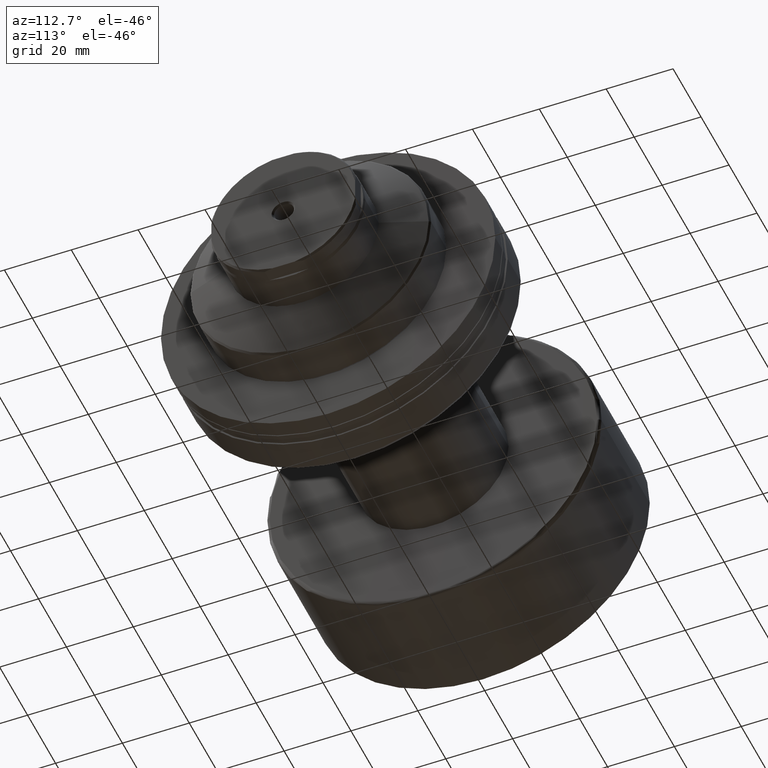
[diagram: clean part render]
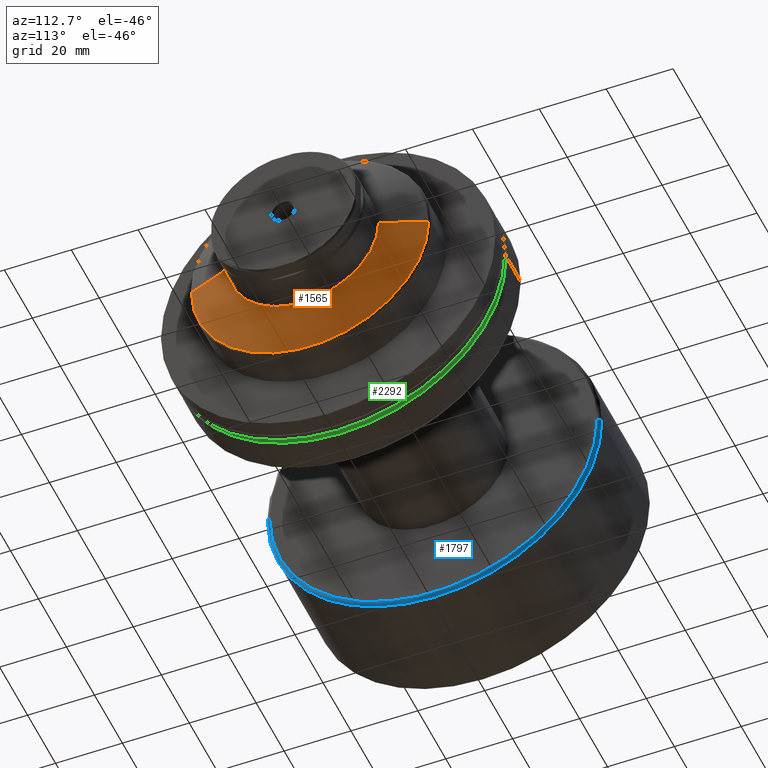
[diagram: same view with three faces highlighted in distinct colors, each labeled with its STEP entity id]
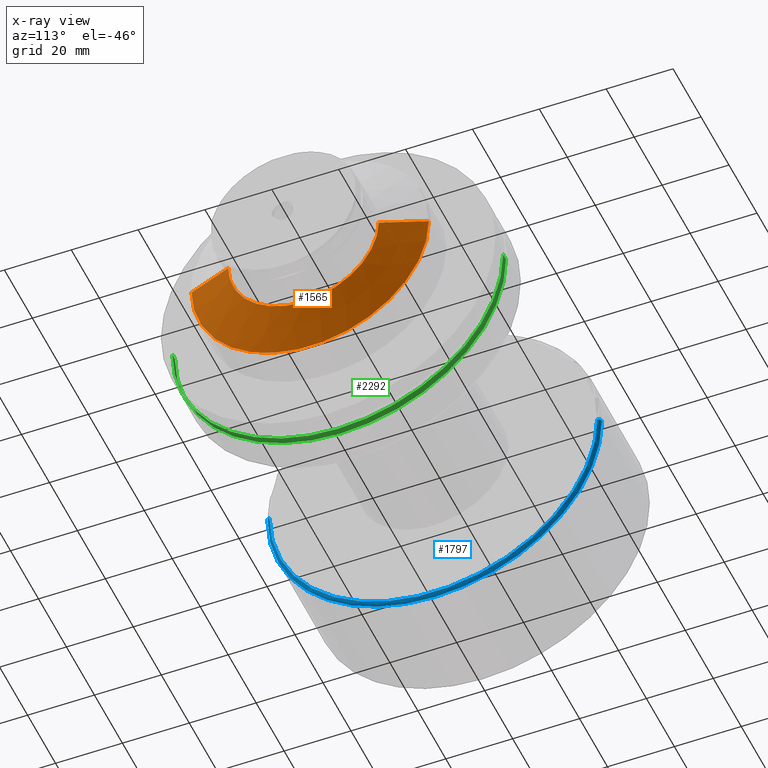
[diagram: x-ray of the same camera — body ghosted, the three highlighted faces saturated]
A machine part, auxiliary view with three faces highlighted in distinct colors.
The next image is the same camera in x-ray (body ghosted, the three faces saturated) — at least one of them is partly hidden behind the body in this view.
Their STEP definitions:

[orange] entity #1565 — the highlighted conical surface has half-angle 69.745 deg.
#108 = LINE ( 'NONE', #138, #596 ) ;
#138 = CARTESIAN_POINT ( 'NONE',  ( -13.10000000000066755, -35.49999999999997158, 0.000000000000000000 ) ) ;
#194 = ORIENTED_EDGE ( 'NONE', *, *, #1445, .T. ) ;
#226 = CARTESIAN_POINT ( 'NONE',  ( -13.10000000000066755, -35.49999999999997158, 0.000000000000000000 ) ) ;
#300 = DIRECTION ( 'NONE',  ( -2.443272501375785946E-16, 1.000000000000000000, 0.000000000000000000 ) ) ;
#306 = CONICAL_SURFACE ( 'NONE', #824, 35.49999999999997868, 1.217283882111194204 ) ;
#374 = DIRECTION ( 'NONE',  ( -1.000000000000000000, -2.485414848852932351E-16, 0.000000000000000000 ) ) ;
#476 = AXIS2_PLACEMENT_3D ( 'NONE', #1413, #823, #300 ) ;
#502 = ORIENTED_EDGE ( 'NONE', *, *, #1429, .F. ) ;
#516 = VERTEX_POINT ( 'NONE', #635 ) ;
#568 = AXIS2_PLACEMENT_3D ( 'NONE', #909, #1094, #1798 ) ;
#593 = ORIENTED_EDGE ( 'NONE', *, *, #1277, .T. ) ;
#596 = VECTOR ( 'NONE', #1564, 1000.000000000000000 ) ;
#635 = CARTESIAN_POINT ( 'NONE',  ( -8.302816901408890615, 22.50000000000001066, 3.551475717527323241E-15 ) ) ;
#664 = VERTEX_POINT ( 'NONE', #885 ) ;
#673 = LINE ( 'NONE', #1399, #1167 ) ;
#690 = DIRECTION ( 'NONE',  ( -0.3461951801534135509, 0.9381625111027117603, 1.148917716301979285E-16 ) ) ;
#717 = VERTEX_POINT ( 'NONE', #226 ) ;
#778 = CIRCLE ( 'NONE', #476, 35.49999999999997868 ) ;
#818 = AXIS2_PLACEMENT_3D ( 'NONE', #2102, #1048, #1541 ) ;
#823 = DIRECTION ( 'NONE',  ( 1.000000000000000000, 2.485414848852932351E-16, -0.000000000000000000 ) ) ;
#824 = AXIS2_PLACEMENT_3D ( 'NONE', #1967, #374, #1455 ) ;
#859 = EDGE_LOOP ( 'NONE', ( #502, #194, #1595, #1942, #593 ) ) ;
#885 = CARTESIAN_POINT ( 'NONE',  ( -13.10000000000068532, 35.49999999999998579, 4.347496136973100915E-15 ) ) ;
#909 = CARTESIAN_POINT ( 'NONE',  ( -8.302816901408885286, 5.462247379445728618E-15, 0.000000000000000000 ) ) ;
#925 = VERTEX_POINT ( 'NONE', #1629 ) ;
#982 = CIRCLE ( 'NONE', #568, 22.50000000000000355 ) ;
#1048 = DIRECTION ( 'NONE',  ( -1.000000000000000000, -2.485414848852932351E-16, 0.000000000000000000 ) ) ;
#1094 = DIRECTION ( 'NONE',  ( -1.000000000000000000, -2.485414848852932351E-16, 0.000000000000000000 ) ) ;
#1167 = VECTOR ( 'NONE', #690, 999.9999999999998863 ) ;
#1277 = EDGE_CURVE ( 'NONE', #717, #664, #778, .T. ) ;
#1399 = CARTESIAN_POINT ( 'NONE',  ( -13.10000000000068532, 35.49999999999998579, 4.347496136973100915E-15 ) ) ;
#1413 = CARTESIAN_POINT ( 'NONE',  ( -13.10000000000067644, 4.269948368855093225E-15, 0.000000000000000000 ) ) ;
#1416 = EDGE_CURVE ( 'NONE', #925, #717, #108, .T. ) ;
#1429 = EDGE_CURVE ( 'NONE', #516, #664, #673, .T. ) ;
#1445 = EDGE_CURVE ( 'NONE', #516, #1922, #1823, .T. ) ;
#1455 = DIRECTION ( 'NONE',  ( 2.443272501375785946E-16, -1.000000000000000000, 0.000000000000000000 ) ) ;
#1541 = DIRECTION ( 'NONE',  ( 2.312964634635742464E-16, -1.000000000000000000, 0.000000000000000000 ) ) ;
#1564 = DIRECTION ( 'NONE',  ( -0.3461951801534130513, -0.9381625111027118713, 0.000000000000000000 ) ) ;
#1565 = ADVANCED_FACE ( 'NONE', ( #1627 ), #306, .T. ) ;
#1594 = EDGE_CURVE ( 'NONE', #1922, #925, #982, .T. ) ;
#1595 = ORIENTED_EDGE ( 'NONE', *, *, #1594, .T. ) ;
#1627 = FACE_OUTER_BOUND ( 'NONE', #859, .T. ) ;
#1629 = CARTESIAN_POINT ( 'NONE',  ( -8.302816901408881733, -22.49999999999999645, 0.000000000000000000 ) ) ;
#1798 = DIRECTION ( 'NONE',  ( 2.312964634635742464E-16, -1.000000000000000000, 0.000000000000000000 ) ) ;
#1823 = CIRCLE ( 'NONE', #818, 22.50000000000000355 ) ;
#1922 = VERTEX_POINT ( 'NONE', #2058 ) ;
#1942 = ORIENTED_EDGE ( 'NONE', *, *, #1416, .T. ) ;
#1967 = CARTESIAN_POINT ( 'NONE',  ( -13.10000000000067644, 4.269948368855093225E-15, 0.000000000000000000 ) ) ;
#2058 = CARTESIAN_POINT ( 'NONE',  ( -8.302816901408885286, 0.000000000000000000, -22.50000000000000355 ) ) ;
#2102 = CARTESIAN_POINT ( 'NONE',  ( -8.302816901408885286, 5.462247379445728618E-15, 0.000000000000000000 ) ) ;

[blue] entity #1797 — the highlighted toroidal blend (fillet) surface has major radius 49 mm and minor (blend) radius 1 mm.
#15 = CIRCLE ( 'NONE', #177, 50.00000000000000000 ) ;
#27 = ORIENTED_EDGE ( 'NONE', *, *, #612, .T. ) ;
#177 = AXIS2_PLACEMENT_3D ( 'NONE', #1109, #888, #547 ) ;
#193 = CARTESIAN_POINT ( 'NONE',  ( 35.70000000000000284, 0.000000000000000000, 0.000000000000000000 ) ) ;
#276 = DIRECTION ( 'NONE',  ( 0.000000000000000000, -1.000000000000000000, -1.224646799147349509E-16 ) ) ;
#326 = VERTEX_POINT ( 'NONE', #2065 ) ;
#349 = VERTEX_POINT ( 'NONE', #1385 ) ;
#455 = CIRCLE ( 'NONE', #954, 1.000000000000000888 ) ;
#547 = DIRECTION ( 'NONE',  ( 0.000000000000000000, -1.000000000000000000, 0.000000000000000000 ) ) ;
#559 = EDGE_CURVE ( 'NONE', #2217, #326, #15, .T. ) ;
#612 = EDGE_CURVE ( 'NONE', #1012, #349, #1486, .T. ) ;
#626 = EDGE_LOOP ( 'NONE', ( #1309, #27, #899, #1643 ) ) ;
#640 = CARTESIAN_POINT ( 'NONE',  ( 35.70000000000000284, 50.00000000000000000, 6.123233995736766085E-15 ) ) ;
#768 = EDGE_CURVE ( 'NONE', #349, #326, #455, .T. ) ;
#888 = DIRECTION ( 'NONE',  ( -1.000000000000000000, -1.069542322069065801E-17, -0.000000000000000000 ) ) ;
#899 = ORIENTED_EDGE ( 'NONE', *, *, #768, .T. ) ;
#904 = DIRECTION ( 'NONE',  ( 1.069542322069065955E-17, -1.000000000000000000, 0.000000000000000000 ) ) ;
#919 = DIRECTION ( 'NONE',  ( -1.000000000000000000, -1.069542322069065801E-17, -0.000000000000000000 ) ) ;
#954 = AXIS2_PLACEMENT_3D ( 'NONE', #1386, #1901, #1572 ) ;
#961 = CARTESIAN_POINT ( 'NONE',  ( 36.70000000000000284, 49.00000000000000000, 6.062001655779398511E-15 ) ) ;
#1012 = VERTEX_POINT ( 'NONE', #961 ) ;
#1109 = CARTESIAN_POINT ( 'NONE',  ( 35.70000000000000284, 3.818266089786565135E-16, 0.000000000000000000 ) ) ;
#1171 = CARTESIAN_POINT ( 'NONE',  ( 35.70000000000000284, 49.00000000000000000, 6.000769315822030937E-15 ) ) ;
#1309 = ORIENTED_EDGE ( 'NONE', *, *, #1951, .F. ) ;
#1385 = CARTESIAN_POINT ( 'NONE',  ( 36.70000000000000284, -49.00000000000000000, 0.000000000000000000 ) ) ;
#1386 = CARTESIAN_POINT ( 'NONE',  ( 35.70000000000000284, -49.00000000000000000, 0.000000000000000000 ) ) ;
#1423 = TOROIDAL_SURFACE ( 'NONE', #1885, 49.00000000000000000, 1.000000000000000888 ) ;
#1444 = DIRECTION ( 'NONE',  ( 0.000000000000000000, -1.000000000000000000, 0.000000000000000000 ) ) ;
#1486 = CIRCLE ( 'NONE', #2028, 49.00000000000000000 ) ;
#1572 = DIRECTION ( 'NONE',  ( -1.000000000000000000, 0.000000000000000000, 0.000000000000000000 ) ) ;
#1613 = FACE_OUTER_BOUND ( 'NONE', #626, .T. ) ;
#1643 = ORIENTED_EDGE ( 'NONE', *, *, #559, .F. ) ;
#1646 = AXIS2_PLACEMENT_3D ( 'NONE', #1171, #1869, #276 ) ;
#1746 = CIRCLE ( 'NONE', #1646, 1.000000000000000888 ) ;
#1793 = DIRECTION ( 'NONE',  ( -1.000000000000000000, -1.069542322069065801E-17, -0.000000000000000000 ) ) ;
#1797 = ADVANCED_FACE ( 'NONE', ( #1613 ), #1423, .T. ) ;
#1869 = DIRECTION ( 'NONE',  ( 1.309811581274509052E-33, -1.224646799147353207E-16, 1.000000000000000000 ) ) ;
#1885 = AXIS2_PLACEMENT_3D ( 'NONE', #193, #1793, #904 ) ;
#1901 = DIRECTION ( 'NONE',  ( 0.000000000000000000, 0.000000000000000000, -1.000000000000000000 ) ) ;
#1951 = EDGE_CURVE ( 'NONE', #1012, #2217, #1746, .T. ) ;
#2028 = AXIS2_PLACEMENT_3D ( 'NONE', #2272, #919, #1444 ) ;
#2065 = CARTESIAN_POINT ( 'NONE',  ( 35.70000000000000284, -50.00000000000000000, 0.000000000000000000 ) ) ;
#2217 = VERTEX_POINT ( 'NONE', #640 ) ;
#2272 = CARTESIAN_POINT ( 'NONE',  ( 36.70000000000000284, 3.925220321993471577E-16, 0.000000000000000000 ) ) ;

[green] entity #2292 — the highlighted cylindrical surface (partial cylindrical patch) has radius 49.5 mm, axis along (1, 0, 0).
#7 = EDGE_CURVE ( 'NONE', #572, #432, #263, .T. ) ;
#44 = DIRECTION ( 'NONE',  ( -2.803593496528172893E-16, 1.000000000000000000, 0.000000000000000000 ) ) ;
#91 = CARTESIAN_POINT ( 'NONE',  ( -30.28002276692730987, -49.50000000000000000, 6.062001655779398511E-15 ) ) ;
#180 = CARTESIAN_POINT ( 'NONE',  ( -34.80878161770238677, -49.50000000000000000, 6.062001655779398511E-15 ) ) ;
#209 = CIRCLE ( 'NONE', #1919, 49.49999999999999289 ) ;
#213 = FACE_OUTER_BOUND ( 'NONE', #1509, .T. ) ;
#238 = EDGE_CURVE ( 'NONE', #1491, #1465, #381, .T. ) ;
#263 = LINE ( 'NONE', #91, #2135 ) ;
#381 = LINE ( 'NONE', #1129, #542 ) ;
#407 = EDGE_CURVE ( 'NONE', #432, #1465, #209, .T. ) ;
#409 = DIRECTION ( 'NONE',  ( -2.803593496528173386E-16, 1.000000000000000000, 0.000000000000000000 ) ) ;
#432 = VERTEX_POINT ( 'NONE', #1673 ) ;
#542 = VECTOR ( 'NONE', #587, 1000.000000000000000 ) ;
#545 = ORIENTED_EDGE ( 'NONE', *, *, #407, .F. ) ;
#572 = VERTEX_POINT ( 'NONE', #180 ) ;
#587 = DIRECTION ( 'NONE',  ( 1.000000000000000000, 2.485414848852932351E-16, -0.000000000000000000 ) ) ;
#829 = DIRECTION ( 'NONE',  ( 1.000000000000000000, 2.485414848852932351E-16, -0.000000000000000000 ) ) ;
#850 = AXIS2_PLACEMENT_3D ( 'NONE', #1510, #1495, #44 ) ;
#923 = CARTESIAN_POINT ( 'NONE',  ( -32.80000000000002558, -6.263188833850209719E-16, 0.000000000000000000 ) ) ;
#1027 = CIRCLE ( 'NONE', #1768, 49.50000000000000000 ) ;
#1129 = CARTESIAN_POINT ( 'NONE',  ( -30.28002276692733830, 49.50000000000000000, 0.000000000000000000 ) ) ;
#1150 = EDGE_CURVE ( 'NONE', #572, #1491, #1027, .T. ) ;
#1281 = ORIENTED_EDGE ( 'NONE', *, *, #7, .F. ) ;
#1422 = ORIENTED_EDGE ( 'NONE', *, *, #1150, .T. ) ;
#1465 = VERTEX_POINT ( 'NONE', #2071 ) ;
#1478 = DIRECTION ( 'NONE',  ( 1.000000000000000000, 2.485414848852932351E-16, -0.000000000000000000 ) ) ;
#1491 = VERTEX_POINT ( 'NONE', #1617 ) ;
#1495 = DIRECTION ( 'NONE',  ( 1.000000000000000000, 2.485414848852932351E-16, -0.000000000000000000 ) ) ;
#1509 = EDGE_LOOP ( 'NONE', ( #1281, #1422, #1736, #545 ) ) ;
#1510 = CARTESIAN_POINT ( 'NONE',  ( -30.28002276692732408, 0.000000000000000000, 0.000000000000000000 ) ) ;
#1617 = CARTESIAN_POINT ( 'NONE',  ( -34.80878161770241519, 49.50000000000000000, 0.000000000000000000 ) ) ;
#1673 = CARTESIAN_POINT ( 'NONE',  ( -32.80000000000001137, -49.49999999999999289, 6.062001655779397722E-15 ) ) ;
#1736 = ORIENTED_EDGE ( 'NONE', *, *, #238, .T. ) ;
#1768 = AXIS2_PLACEMENT_3D ( 'NONE', #2283, #2294, #2119 ) ;
#1919 = AXIS2_PLACEMENT_3D ( 'NONE', #923, #1478, #409 ) ;
#2021 = CYLINDRICAL_SURFACE ( 'NONE', #850, 49.50000000000000000 ) ;
#2071 = CARTESIAN_POINT ( 'NONE',  ( -32.80000000000003979, 49.49999999999999289, 0.000000000000000000 ) ) ;
#2119 = DIRECTION ( 'NONE',  ( -2.803593496528172893E-16, 1.000000000000000000, 0.000000000000000000 ) ) ;
#2135 = VECTOR ( 'NONE', #829, 1000.000000000000000 ) ;
#2283 = CARTESIAN_POINT ( 'NONE',  ( -34.80878161770240098, -1.125584449459051283E-15, 0.000000000000000000 ) ) ;
#2292 = ADVANCED_FACE ( 'NONE', ( #213 ), #2021, .T. ) ;
#2294 = DIRECTION ( 'NONE',  ( 1.000000000000000000, 2.485414848852932351E-16, -0.000000000000000000 ) ) ;